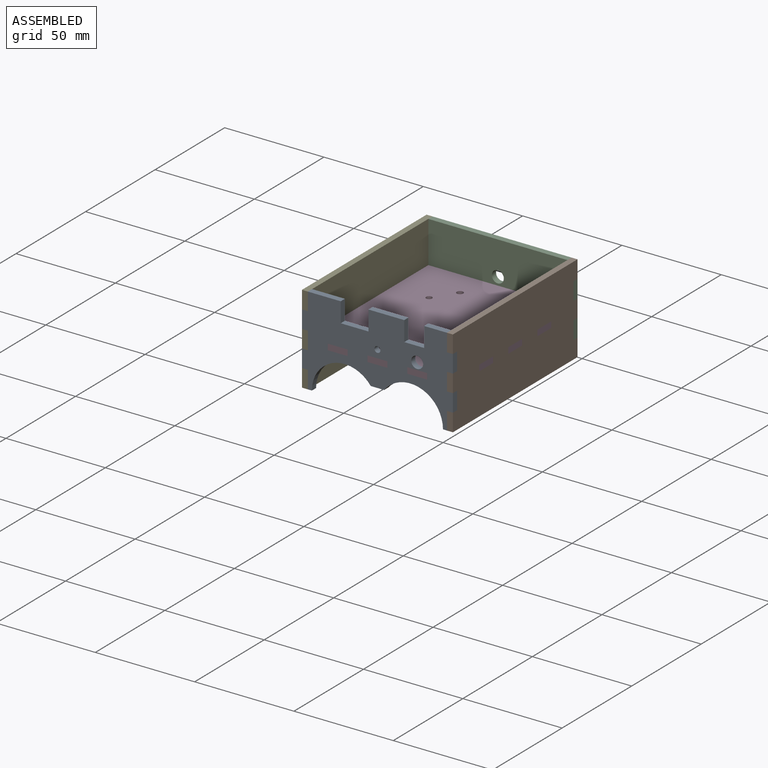
[diagram: assembled view]
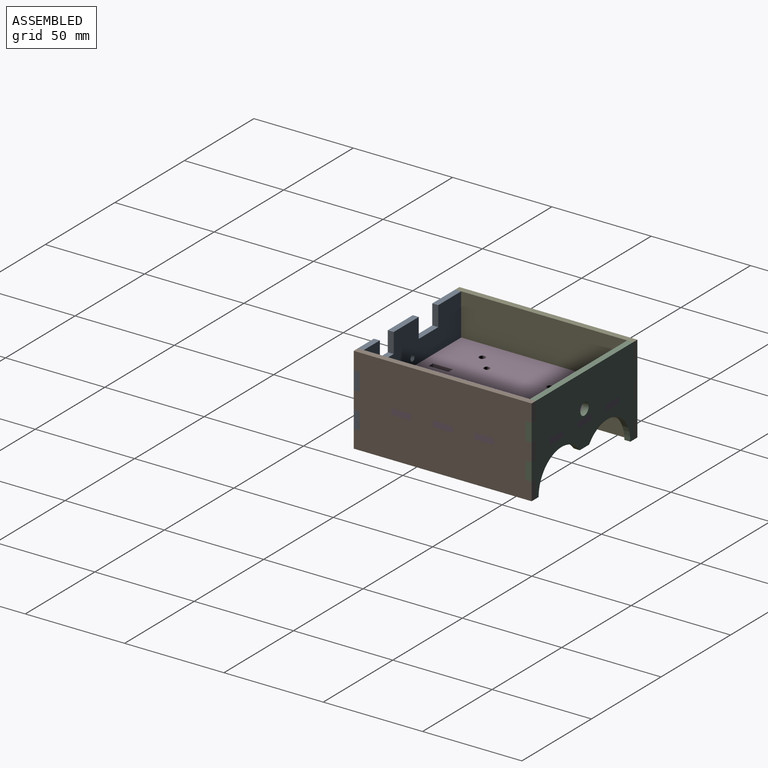
[diagram: assembled view, second angle]
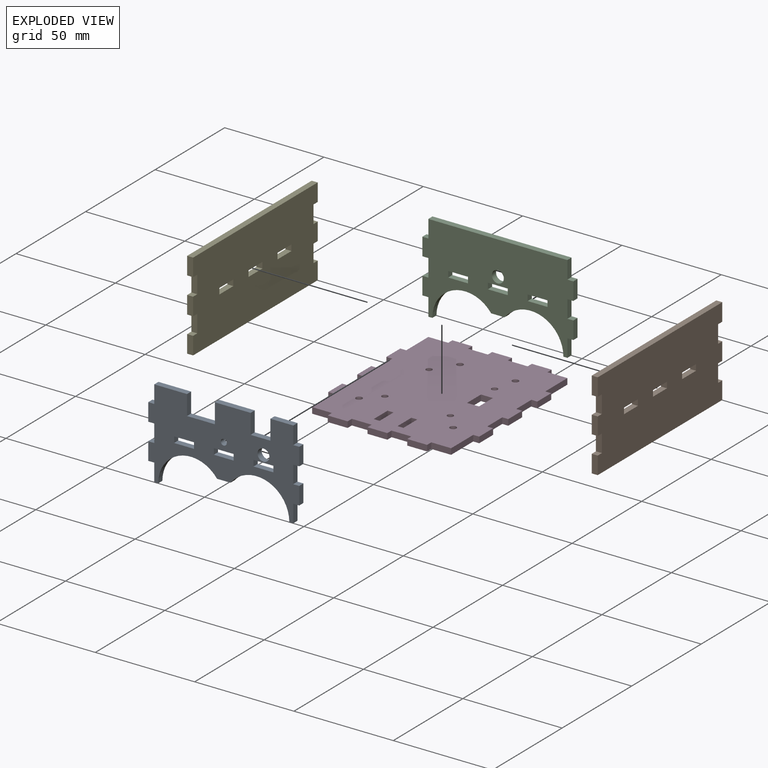
[diagram: exploded view]
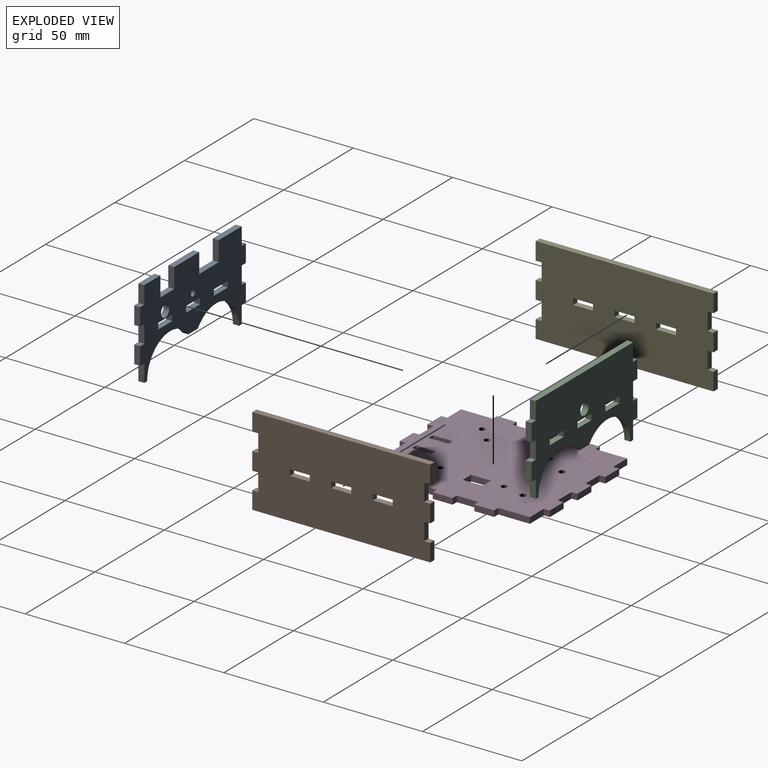
[diagram: exploded view, second angle]
ASSEMBLY  parts=5 mates=4
PART A: 48 faces, bbox 76x44.5x3 mm
  f0: plane 3x3mm, normal (-1,0,0), area 9mm2, adj f1,f45,f46,f47
  f1: plane 10x3mm, normal (0,1,0), area 30mm2, adj f0,f2,f46,f47
  f2: plane 3x3mm, normal (1,0,0), area 9mm2, adj f1,f45,f46,f47
  f3: plane 3x3mm, normal (-1,0,0), area 9mm2, adj f4,f40,f46,f47
  f4: plane 10x3mm, normal (0,1,0), area 30mm2, adj f3,f5,f46,f47
  f5: plane 3x3mm, normal (1,0,0), area 9mm2, adj f4,f40,f46,f47
  f6: plane 3x3mm, normal (-1,0,0), area 9mm2, adj f7,f41,f46,f47
  f7: plane 10x3mm, normal (0,1,0), area 30mm2, adj f6,f8,f46,f47
  f8: plane 3x3mm, normal (1,0,0), area 9mm2, adj f7,f41,f46,f47
  f9: cylinder r=16.5mm len=29.62mm, axis (0,0,-1), area 123.3mm2, adj f10,f44,f46,f47
  f10: plane 3x2mm, normal (0,-1,0), area 6mm2, adj f9,f11,f46,f47
  f11: plane 8.9x3mm, normal (1,0,0), area 26.7mm2, adj f10,f12,f46,f47
  f12: plane 3x3mm, normal (0,-1,0), area 9mm2, adj f11,f13,f46,f47
  f13: plane 8.9x3mm, normal (1,0,0), area 26.7mm2, adj f12,f14,f46,f47
  f14: plane 3x3mm, normal (0,1,0), area 9mm2, adj f13,f15,f46,f47
  f15: plane 8.9x3mm, normal (1,0,0), area 26.7mm2, adj f14,f16,f46,f47
  f16: plane 3x3mm, normal (0,-1,0), area 9mm2, adj f15,f17,f46,f47
  f17: plane 8.9x3mm, normal (1,0,0), area 26.7mm2, adj f16,f18,f46,f47
  f18: plane 3x3mm, normal (0,1,0), area 9mm2, adj f17,f19,f46,f47
  f19: plane 8.9x3mm, normal (1,0,0), area 26.7mm2, adj f18,f20,f46,f47
  f20: plane 11.5x3mm, normal (0,1,0), area 34.5mm2, adj f19,f21,f46,f47
  f21: plane 10x3mm, normal (-1,0,0), area 30mm2, adj f20,f22,f46,f47
  f22: plane 10x3mm, normal (0,1,0), area 30mm2, adj f21,f23,f46,f47
  f23: plane 10x3mm, normal (1,0,0), area 30mm2, adj f22,f24,f46,f47
  f24: plane 18x3mm, normal (0,1,0), area 54mm2, adj f23,f25,f46,f47
  f25: plane 10x3mm, normal (-1,0,0), area 30mm2, adj f24,f26,f46,f47
  f26: plane 14x3mm, normal (0,1,0), area 42mm2, adj f25,f27,f46,f47
  f27: plane 10x3mm, normal (1,0,0), area 30mm2, adj f26,f28,f46,f47
  f28: plane 16.5x3mm, normal (0,1,0), area 49.5mm2, adj f27,f29,f46,f47
  f29: plane 8.9x3mm, normal (-1,0,0), area 26.7mm2, adj f28,f30,f46,f47
  f30: plane 3x3mm, normal (0,1,0), area 9mm2, adj f29,f31,f46,f47
  f31: plane 8.9x3mm, normal (-1,0,0), area 26.7mm2, adj f30,f32,f46,f47
  f32: plane 3x3mm, normal (0,-1,0), area 9mm2, adj f31,f33,f46,f47
  f33: plane 8.9x3mm, normal (-1,0,0), area 26.7mm2, adj f32,f34,f46,f47
  f34: plane 3x3mm, normal (0,1,0), area 9mm2, adj f33,f35,f46,f47
  f35: plane 8.9x3mm, normal (-1,0,0), area 26.7mm2, adj f34,f36,f46,f47
  f36: plane 3x3mm, normal (0,-1,0), area 9mm2, adj f35,f37,f46,f47
  f37: plane 8.9x3mm, normal (-1,0,0), area 26.7mm2, adj f36,f38,f46,f47
  f38: plane 3x2mm, normal (0,-1,0), area 6mm2, adj f37,f39,f46,f47
  f39: cylinder r=16.5mm len=29.62mm, axis (0,0,-1), area 123.3mm2, adj f38,f44,f46,f47
  f40: plane 10x3mm, normal (0,-1,0), area 30mm2, adj f3,f5,f46,f47
  f41: plane 10x3mm, normal (0,-1,0), area 30mm2, adj f6,f8,f46,f47
  f42: cylinder r=3mm len=6mm, axis (0,0,-1), area 56.5mm2, adj f46,f47
  f43: cylinder r=1.5mm len=3mm, axis (0,0,-1), area 28.3mm2, adj f46,f47
  f44: plane 6.75x3mm, normal (0,-1,0), area 20.3mm2, adj f9,f39,f46,f47
  f45: plane 10x3mm, normal (0,-1,0), area 30mm2, adj f0,f2,f46,f47
  f46: plane 76x44.5mm, normal (0,0,1), area 1979.7mm2, adj f0,f1,f2,f3,f4,f5,f6,f7
  f47: plane 76x44.5mm, normal (0,0,-1), area 1979.7mm2, adj f0,f1,f2,f3,f4,f5,f6,f7
PART B: 34 faces, bbox 89.6x44.5x3 mm
  f0: plane 3x3mm, normal (-1,0,0), area 9mm2, adj f1,f31,f32,f33
  f1: plane 10x3mm, normal (0,1,0), area 30mm2, adj f0,f2,f32,f33
  f2: plane 3x3mm, normal (1,0,0), area 9mm2, adj f1,f31,f32,f33
  f3: plane 3x3mm, normal (-1,0,0), area 9mm2, adj f4,f28,f32,f33
  f4: plane 10x3mm, normal (0,1,0), area 30mm2, adj f3,f5,f32,f33
  f5: plane 3x3mm, normal (1,0,0), area 9mm2, adj f4,f28,f32,f33
  f6: plane 3x3mm, normal (-1,0,0), area 9mm2, adj f7,f29,f32,f33
  f7: plane 10x3mm, normal (0,1,0), area 30mm2, adj f6,f8,f32,f33
  f8: plane 3x3mm, normal (1,0,0), area 9mm2, adj f7,f29,f32,f33
  f9: plane 8.9x3mm, normal (-1,0,0), area 26.7mm2, adj f10,f30,f32,f33
  f10: plane 89.58x3mm, normal (0,-1,0), area 268.7mm2, adj f9,f11,f32,f33
  f11: plane 8.9x3mm, normal (1,0,0), area 26.7mm2, adj f10,f12,f32,f33
  f12: plane 3x3mm, normal (0,1,0), area 9mm2, adj f11,f13,f32,f33
  f13: plane 8.9x3mm, normal (1,0,0), area 26.7mm2, adj f12,f14,f32,f33
  f14: plane 3x3mm, normal (0,-1,0), area 9mm2, adj f13,f15,f32,f33
  f15: plane 8.9x3mm, normal (1,0,0), area 26.7mm2, adj f14,f16,f32,f33
  f16: plane 3x3mm, normal (0,1,0), area 9mm2, adj f15,f17,f32,f33
  f17: plane 8.9x3mm, normal (1,0,0), area 26.7mm2, adj f16,f18,f32,f33
  f18: plane 3x3mm, normal (0,-1,0), area 9mm2, adj f17,f19,f32,f33
  f19: plane 8.9x3mm, normal (1,0,0), area 26.7mm2, adj f18,f20,f32,f33
  f20: plane 89.58x3mm, normal (0,1,0), area 268.7mm2, adj f19,f21,f32,f33
  f21: plane 8.9x3mm, normal (-1,0,0), area 26.7mm2, adj f20,f22,f32,f33
  f22: plane 3x3mm, normal (0,-1,0), area 9mm2, adj f21,f23,f32,f33
  f23: plane 8.9x3mm, normal (-1,0,0), area 26.7mm2, adj f22,f24,f32,f33
  f24: plane 3x3mm, normal (0,1,0), area 9mm2, adj f23,f25,f32,f33
  f25: plane 8.9x3mm, normal (-1,0,0), area 26.7mm2, adj f24,f26,f32,f33
  f26: plane 3x3mm, normal (0,-1,0), area 9mm2, adj f25,f27,f32,f33
  f27: plane 8.9x3mm, normal (-1,0,0), area 26.7mm2, adj f26,f30,f32,f33
  f28: plane 10x3mm, normal (0,-1,0), area 30mm2, adj f3,f5,f32,f33
  f29: plane 10x3mm, normal (0,-1,0), area 30mm2, adj f6,f8,f32,f33
  f30: plane 3x3mm, normal (0,1,0), area 9mm2, adj f9,f27,f32,f33
  f31: plane 10x3mm, normal (0,-1,0), area 30mm2, adj f0,f2,f32,f33
  f32: plane 89.58x44.5mm, normal (0,0,1), area 3789.5mm2, adj f0,f1,f2,f3,f4,f5,f6,f7
  f33: plane 89.58x44.5mm, normal (0,0,-1), area 3789.5mm2, adj f0,f1,f2,f3,f4,f5,f6,f7
PART C: 39 faces, bbox 76x44.5x3 mm
  f0: plane 10x3mm, normal (0,-1,0), area 30mm2, adj f1,f32,f37,f38
  f1: plane 3x3mm, normal (-1,0,0), area 9mm2, adj f0,f2,f37,f38
  f2: plane 10x3mm, normal (0,1,0), area 30mm2, adj f1,f32,f37,f38
  f3: plane 10x3mm, normal (0,-1,0), area 30mm2, adj f4,f33,f37,f38
  f4: plane 3x3mm, normal (-1,0,0), area 9mm2, adj f3,f5,f37,f38
  f5: plane 10x3mm, normal (0,1,0), area 30mm2, adj f4,f33,f37,f38
  f6: plane 10x3mm, normal (0,-1,0), area 30mm2, adj f7,f34,f37,f38
  f7: plane 3x3mm, normal (-1,0,0), area 9mm2, adj f6,f8,f37,f38
  f8: plane 10x3mm, normal (0,1,0), area 30mm2, adj f7,f34,f37,f38
  f9: plane 70x3mm, normal (0,-1,0), area 210mm2, adj f10,f35,f37,f38
  f10: plane 8.9x3mm, normal (1,0,0), area 26.7mm2, adj f9,f11,f37,f38
  f11: plane 3x3mm, normal (0,-1,0), area 9mm2, adj f10,f12,f37,f38
  f12: plane 8.9x3mm, normal (1,0,0), area 26.7mm2, adj f11,f13,f37,f38
  f13: plane 3x3mm, normal (0,1,0), area 9mm2, adj f12,f14,f37,f38
  f14: plane 8.9x3mm, normal (1,0,0), area 26.7mm2, adj f13,f15,f37,f38
  f15: plane 3x3mm, normal (0,-1,0), area 9mm2, adj f14,f16,f37,f38
  f16: plane 8.9x3mm, normal (1,0,0), area 26.7mm2, adj f15,f17,f37,f38
  f17: plane 3x3mm, normal (0,1,0), area 9mm2, adj f16,f18,f37,f38
  f18: plane 8.9x3mm, normal (1,0,0), area 26.7mm2, adj f17,f19,f37,f38
  f19: plane 3x2mm, normal (0,1,0), area 6mm2, adj f18,f20,f37,f38
  f20: cylinder r=16.5mm len=29.62mm, axis (0,0,-1), area 123.3mm2, adj f19,f21,f37,f38
  f21: plane 6.75x3mm, normal (0,1,0), area 20.3mm2, adj f20,f22,f37,f38
  f22: cylinder r=16.5mm len=29.62mm, axis (0,0,-1), area 123.3mm2, adj f21,f23,f37,f38
  f23: plane 3x2mm, normal (0,1,0), area 6mm2, adj f22,f24,f37,f38
  f24: plane 8.9x3mm, normal (-1,0,0), area 26.7mm2, adj f23,f25,f37,f38
  f25: plane 3x3mm, normal (0,1,0), area 9mm2, adj f24,f26,f37,f38
  f26: plane 8.9x3mm, normal (-1,0,0), area 26.7mm2, adj f25,f27,f37,f38
  f27: plane 3x3mm, normal (0,-1,0), area 9mm2, adj f26,f28,f37,f38
  f28: plane 8.9x3mm, normal (-1,0,0), area 26.7mm2, adj f27,f29,f37,f38
  f29: plane 3x3mm, normal (0,1,0), area 9mm2, adj f28,f30,f37,f38
  f30: plane 8.9x3mm, normal (-1,0,0), area 26.7mm2, adj f29,f31,f37,f38
  f31: plane 3x3mm, normal (0,-1,0), area 9mm2, adj f30,f35,f37,f38
  f32: plane 3x3mm, normal (1,0,0), area 9mm2, adj f0,f2,f37,f38
  f33: plane 3x3mm, normal (1,0,0), area 9mm2, adj f3,f5,f37,f38
  f34: plane 3x3mm, normal (1,0,0), area 9mm2, adj f6,f8,f37,f38
  f35: plane 8.9x3mm, normal (-1,0,0), area 26.7mm2, adj f9,f31,f37,f38
  f36: cylinder r=3mm len=6mm, axis (0,0,-1), area 56.5mm2, adj f37,f38
  f37: plane 76x44.5mm, normal (0,0,1), area 2226.7mm2, adj f0,f1,f2,f3,f4,f5,f6,f7
  f38: plane 76x44.5mm, normal (0,0,-1), area 2226.7mm2, adj f0,f1,f2,f3,f4,f5,f6,f7
PART D: 74 faces, bbox 76x89.6x3 mm
  f0: plane 10x3mm, normal (-1,0,0), area 30mm2, adj f1,f71,f72,f73
  f1: plane 3x3mm, normal (0,1,0), area 9mm2, adj f0,f2,f72,f73
  f2: plane 10x3mm, normal (1,0,0), area 30mm2, adj f1,f71,f72,f73
  f3: plane 3x3mm, normal (0,-1,0), area 9mm2, adj f4,f68,f72,f73
  f4: plane 10x3mm, normal (-1,0,0), area 30mm2, adj f3,f5,f72,f73
  f5: plane 3x3mm, normal (0,1,0), area 9mm2, adj f4,f68,f72,f73
  f6: plane 6x3mm, normal (0,1,0), area 18mm2, adj f7,f69,f72,f73
  f7: plane 10x3mm, normal (1,0,0), area 30mm2, adj f6,f8,f72,f73
  f8: plane 6x3mm, normal (0,-1,0), area 18mm2, adj f7,f69,f72,f73
  f9: plane 3x3mm, normal (-1,0,0), area 9mm2, adj f10,f70,f72,f73
  f10: plane 10x3mm, normal (0,1,0), area 30mm2, adj f9,f11,f72,f73
  f11: plane 3x3mm, normal (1,0,0), area 9mm2, adj f10,f12,f72,f73
  f12: plane 10x3mm, normal (0,1,0), area 30mm2, adj f11,f13,f72,f73
  f13: plane 3x3mm, normal (-1,0,0), area 9mm2, adj f12,f14,f72,f73
  f14: plane 10x3mm, normal (0,1,0), area 30mm2, adj f13,f15,f72,f73
  f15: plane 3x3mm, normal (1,0,0), area 9mm2, adj f14,f16,f72,f73
  f16: plane 10x3mm, normal (0,1,0), area 30mm2, adj f15,f17,f72,f73
  f17: plane 3x3mm, normal (-1,0,0), area 9mm2, adj f16,f18,f72,f73
  f18: plane 10x3mm, normal (0,1,0), area 30mm2, adj f17,f19,f72,f73
  f19: plane 15.9x3mm, normal (-1,0,0), area 47.7mm2, adj f18,f20,f72,f73
  f20: plane 3x3mm, normal (0,1,0), area 9mm2, adj f19,f21,f72,f73
  f21: plane 10x3mm, normal (-1,0,0), area 30mm2, adj f20,f22,f72,f73
  f22: plane 3x3mm, normal (0,-1,0), area 9mm2, adj f21,f23,f72,f73
  f23: plane 10.9x3mm, normal (-1,0,0), area 32.7mm2, adj f22,f24,f72,f73
  f24: plane 3x3mm, normal (0,1,0), area 9mm2, adj f23,f25,f72,f73
  f25: plane 10x3mm, normal (-1,0,0), area 30mm2, adj f24,f26,f72,f73
  f26: plane 3x3mm, normal (0,-1,0), area 9mm2, adj f25,f27,f72,f73
  f27: plane 10.9x3mm, normal (-1,0,0), area 32.7mm2, adj f26,f28,f72,f73
  f28: plane 3x3mm, normal (0,1,0), area 9mm2, adj f27,f29,f72,f73
  f29: plane 10x3mm, normal (-1,0,0), area 30mm2, adj f28,f30,f72,f73
  f30: plane 3x3mm, normal (0,-1,0), area 9mm2, adj f29,f31,f72,f73
  f31: plane 15.9x3mm, normal (-1,0,0), area 47.7mm2, adj f30,f32,f72,f73
  f32: plane 10x3mm, normal (0,-1,0), area 30mm2, adj f31,f33,f72,f73
  f33: plane 3x3mm, normal (-1,0,0), area 9mm2, adj f32,f34,f72,f73
  f34: plane 10x3mm, normal (0,-1,0), area 30mm2, adj f33,f35,f72,f73
  f35: plane 3x3mm, normal (1,0,0), area 9mm2, adj f34,f36,f72,f73
  f36: plane 10x3mm, normal (0,-1,0), area 30mm2, adj f35,f37,f72,f73
  f37: plane 3x3mm, normal (-1,0,0), area 9mm2, adj f36,f38,f72,f73
  f38: plane 10x3mm, normal (0,-1,0), area 30mm2, adj f37,f39,f72,f73
  f39: plane 3x3mm, normal (1,0,0), area 9mm2, adj f38,f40,f72,f73
  f40: plane 10x3mm, normal (0,-1,0), area 30mm2, adj f39,f41,f72,f73
  f41: plane 3x3mm, normal (-1,0,0), area 9mm2, adj f40,f42,f72,f73
  f42: plane 10x3mm, normal (0,-1,0), area 30mm2, adj f41,f43,f72,f73
  f43: plane 3x3mm, normal (1,0,0), area 9mm2, adj f42,f44,f72,f73
  f44: plane 10x3mm, normal (0,-1,0), area 30mm2, adj f43,f45,f72,f73
  f45: plane 15.9x3mm, normal (1,0,0), area 47.7mm2, adj f44,f46,f72,f73
  f46: plane 3x3mm, normal (0,-1,0), area 9mm2, adj f45,f47,f72,f73
  f47: plane 10x3mm, normal (1,0,0), area 30mm2, adj f46,f48,f72,f73
  f48: plane 3x3mm, normal (0,1,0), area 9mm2, adj f47,f49,f72,f73
  f49: plane 10.9x3mm, normal (1,0,0), area 32.7mm2, adj f48,f50,f72,f73
  f50: plane 3x3mm, normal (0,-1,0), area 9mm2, adj f49,f51,f72,f73
  f51: plane 10x3mm, normal (1,0,0), area 30mm2, adj f50,f52,f72,f73
  f52: plane 3x3mm, normal (0,1,0), area 9mm2, adj f51,f53,f72,f73
  f53: plane 10.9x3mm, normal (1,0,0), area 32.7mm2, adj f52,f54,f72,f73
  f54: plane 3x3mm, normal (0,-1,0), area 9mm2, adj f53,f55,f72,f73
  f55: plane 10x3mm, normal (1,0,0), area 30mm2, adj f54,f56,f72,f73
  f56: plane 3x3mm, normal (0,1,0), area 9mm2, adj f55,f57,f72,f73
  f57: plane 15.9x3mm, normal (1,0,0), area 47.7mm2, adj f56,f58,f72,f73
  f58: plane 10x3mm, normal (0,1,0), area 30mm2, adj f57,f59,f72,f73
  f59: plane 3x3mm, normal (1,0,0), area 9mm2, adj f58,f70,f72,f73
  f60: cylinder r=1.6mm len=3.2mm, axis (0,0,-1), area 30.2mm2, adj f72,f73
  f61: cylinder r=1.6mm len=3.2mm, axis (0,0,-1), area 30.2mm2, adj f72,f73
  f62: cylinder r=1.5mm len=3mm, axis (0,0,-1), area 28.3mm2, adj f72,f73
  f63: cylinder r=1.5mm len=3mm, axis (0,0,-1), area 28.3mm2, adj f72,f73
  f64: cylinder r=1.5mm len=3mm, axis (0,0,-1), area 28.3mm2, adj f72,f73
  f65: cylinder r=1.5mm len=3mm, axis (0,0,-1), area 28.3mm2, adj f72,f73
  f66: cylinder r=1.6mm len=3.2mm, axis (0,0,-1), area 30.2mm2, adj f72,f73
  f67: cylinder r=1.6mm len=3.2mm, axis (0,0,-1), area 30.2mm2, adj f72,f73
  f68: plane 10x3mm, normal (1,0,0), area 30mm2, adj f3,f5,f72,f73
  f69: plane 10x3mm, normal (-1,0,0), area 30mm2, adj f6,f8,f72,f73
  f70: plane 10x3mm, normal (0,1,0), area 30mm2, adj f9,f59,f72,f73
  f71: plane 3x3mm, normal (0,-1,0), area 9mm2, adj f0,f2,f72,f73
  f72: plane 89.58x76mm, normal (0,0,1), area 6030.2mm2, adj f0,f1,f2,f3,f4,f5,f6,f7
  f73: plane 89.58x76mm, normal (0,0,-1), area 6030.2mm2, adj f0,f1,f2,f3,f4,f5,f6,f7
PART E: 34 faces, bbox 89.6x44.5x3 mm
  f0: plane 8.9x3mm, normal (1,0,0), area 26.7mm2, adj f1,f31,f32,f33
  f1: plane 89.58x3mm, normal (0,1,0), area 268.7mm2, adj f0,f2,f32,f33
  f2: plane 8.9x3mm, normal (-1,0,0), area 26.7mm2, adj f1,f3,f32,f33
  f3: plane 3x3mm, normal (0,-1,0), area 9mm2, adj f2,f4,f32,f33
  f4: plane 8.9x3mm, normal (-1,0,0), area 26.7mm2, adj f3,f5,f32,f33
  f5: plane 3x3mm, normal (0,1,0), area 9mm2, adj f4,f6,f32,f33
  f6: plane 8.9x3mm, normal (-1,0,0), area 26.7mm2, adj f5,f7,f32,f33
  f7: plane 3x3mm, normal (0,-1,0), area 9mm2, adj f6,f8,f32,f33
  f8: plane 8.9x3mm, normal (-1,0,0), area 26.7mm2, adj f7,f9,f32,f33
  f9: plane 3x3mm, normal (0,1,0), area 9mm2, adj f8,f10,f32,f33
  f10: plane 8.9x3mm, normal (-1,0,0), area 26.7mm2, adj f9,f11,f32,f33
  f11: plane 89.58x3mm, normal (0,-1,0), area 268.7mm2, adj f10,f12,f32,f33
  f12: plane 8.9x3mm, normal (1,0,0), area 26.7mm2, adj f11,f13,f32,f33
  f13: plane 3x3mm, normal (0,1,0), area 9mm2, adj f12,f14,f32,f33
  f14: plane 8.9x3mm, normal (1,0,0), area 26.7mm2, adj f13,f15,f32,f33
  f15: plane 3x3mm, normal (0,-1,0), area 9mm2, adj f14,f16,f32,f33
  f16: plane 8.9x3mm, normal (1,0,0), area 26.7mm2, adj f15,f17,f32,f33
  f17: plane 3x3mm, normal (0,1,0), area 9mm2, adj f16,f18,f32,f33
  f18: plane 8.9x3mm, normal (1,0,0), area 26.7mm2, adj f17,f31,f32,f33
  f19: plane 10x3mm, normal (0,-1,0), area 30mm2, adj f20,f28,f32,f33
  f20: plane 3x3mm, normal (-1,0,0), area 9mm2, adj f19,f21,f32,f33
  f21: plane 10x3mm, normal (0,1,0), area 30mm2, adj f20,f28,f32,f33
  f22: plane 10x3mm, normal (0,-1,0), area 30mm2, adj f23,f29,f32,f33
  f23: plane 3x3mm, normal (-1,0,0), area 9mm2, adj f22,f24,f32,f33
  f24: plane 10x3mm, normal (0,1,0), area 30mm2, adj f23,f29,f32,f33
  f25: plane 10x3mm, normal (0,-1,0), area 30mm2, adj f26,f30,f32,f33
  f26: plane 3x3mm, normal (-1,0,0), area 9mm2, adj f25,f27,f32,f33
  f27: plane 10x3mm, normal (0,1,0), area 30mm2, adj f26,f30,f32,f33
  f28: plane 3x3mm, normal (1,0,0), area 9mm2, adj f19,f21,f32,f33
  f29: plane 3x3mm, normal (1,0,0), area 9mm2, adj f22,f24,f32,f33
  f30: plane 3x3mm, normal (1,0,0), area 9mm2, adj f25,f27,f32,f33
  f31: plane 3x3mm, normal (0,-1,0), area 9mm2, adj f0,f18,f32,f33
  f32: plane 89.58x44.5mm, normal (0,0,1), area 3789.5mm2, adj f0,f1,f2,f3,f4,f5,f6,f7
  f33: plane 89.58x44.5mm, normal (0,0,-1), area 3789.5mm2, adj f0,f1,f2,f3,f4,f5,f6,f7
PLACE A rot(axis=(1,0,0),90deg) t=(316.95,38.77,-19.94)mm
PLACE B rot(axis=(0.58,0.58,0.58),120deg) t=(261.95,80.35,-19.94)mm
PLACE C rot(axis=(-1,0,0),90deg) t=(316.95,122.35,-19.94)mm
PLACE D t=(136.95,83.77,5.56)mm
PLACE E rot(axis=(-0.58,-0.58,0.58),120deg) t=(191.95,75.77,-17.86)mm
MATE fastened A.f46 <-> D.f38  axis (0,-1,0) through (226.95,35.77,7.06)mm
MATE fastened E.f32 <-> D.f25  axis (-1,0,0) through (188.95,80.56,7.06)mm
MATE fastened B.f32 <-> D.f51  axis (1,0,0) through (264.95,80.56,7.06)mm
MATE fastened C.f37 <-> D.f12  axis (0,1,0) through (226.95,125.35,7.06)mm
